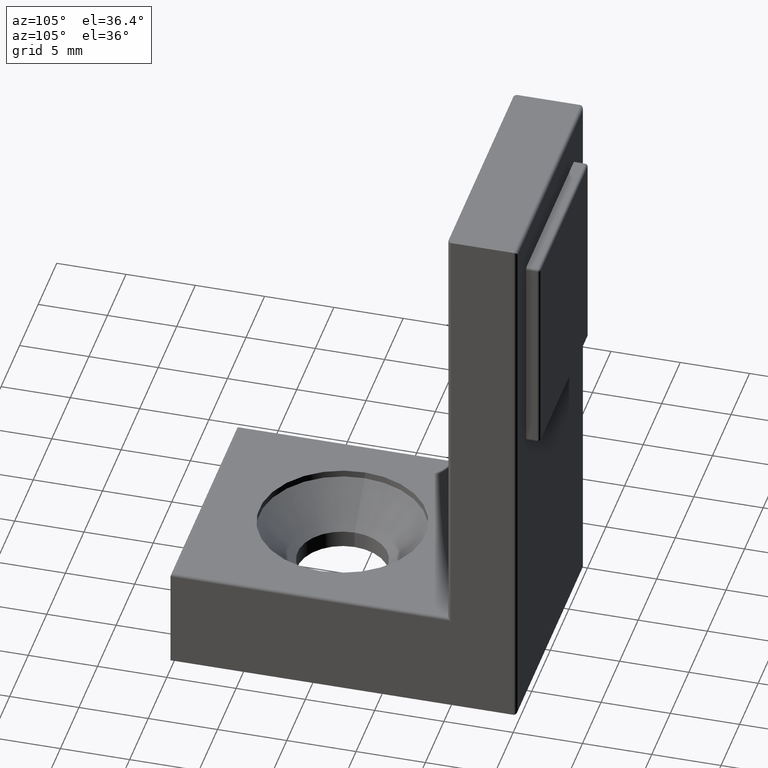
[diagram: clean part render]
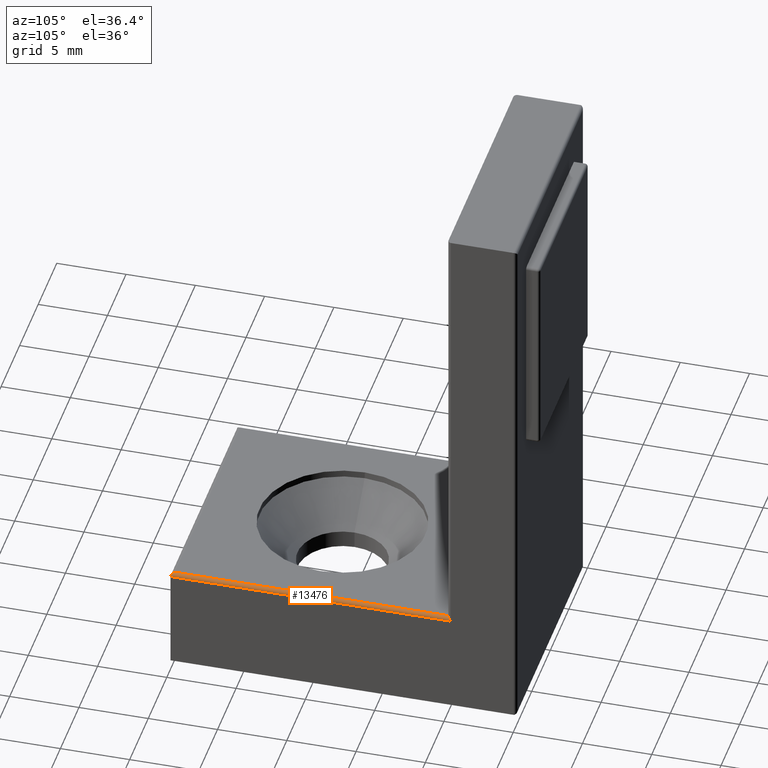
[diagram: same view with one face highlighted and labeled with its STEP entity id]
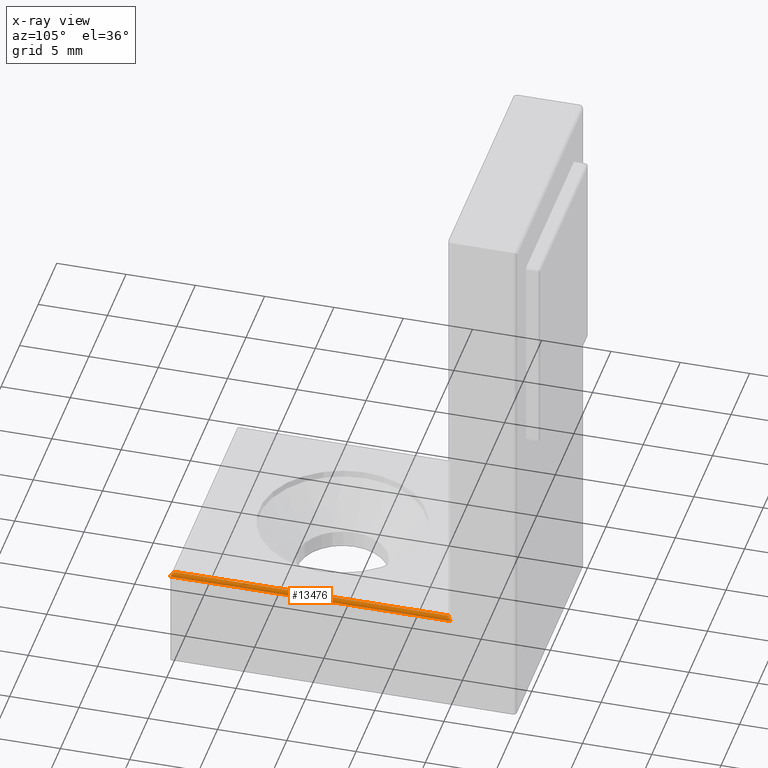
[diagram: x-ray of the same camera — body ghosted, the highlighted face saturated]
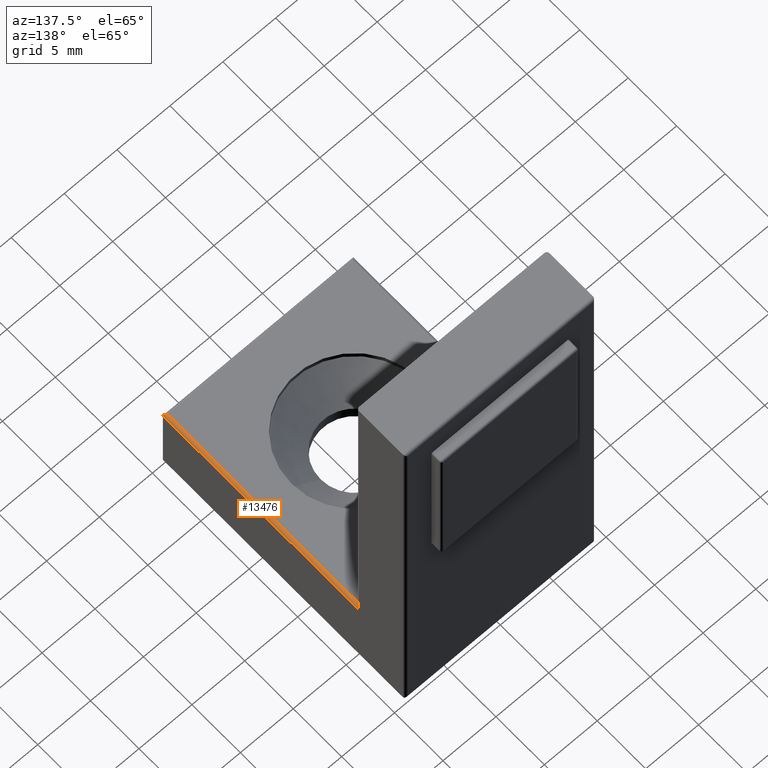
[diagram: same view with one face highlighted and labeled with its STEP entity id]
A machine part, auxiliary view. The second image highlights one B-rep face of the part: STEP entity #13476.
The next image is the same camera in x-ray: the body ghosted, the highlighted face saturated — about 0% of this face is hidden behind the body in this view.
A second angle (auxiliary view) of the same face is appended — the face is thin or edge-on in the first view.
In plain terms, the highlighted cylindrical surface (edge-blend (fillet) strip) has radius 0.25 mm, axis along (0, -1, -0).
Its self-contained STEP definition (entity closure, byte-faithful):
#351 = LINE ( 'NONE', #15017, #12426 ) ;
#391 = CARTESIAN_POINT ( 'NONE',  ( 8.749999999999998200, -24.75000000000000000, 7.499999999999996400 ) ) ;
#475 = LINE ( 'NONE', #1909, #8980 ) ;
#1492 = FACE_OUTER_BOUND ( 'NONE', #11114, .T. ) ;
#1909 = CARTESIAN_POINT ( 'NONE',  ( 8.749999999999998200, -4.999999999999999100, 7.500000000000000000 ) ) ;
#1987 = CARTESIAN_POINT ( 'NONE',  ( 9.000000000000000000, -4.749999999999999100, 7.249999999999999100 ) ) ;
#2018 = CARTESIAN_POINT ( 'NONE',  ( 8.749999999999998200, -4.999999999999999100, 7.500000000000000000 ) ) ;
#2036 = EDGE_CURVE ( 'NONE', #2319, #6751, #351, .T. ) ;
#2319 = VERTEX_POINT ( 'NONE', #1987 ) ;
#2848 = CARTESIAN_POINT ( 'NONE',  ( 9.000000000000000000, -4.749999999999999100, 7.249999999999999100 ) ) ;
#3062 = CARTESIAN_POINT ( 'NONE',  ( 9.000000000000000000, -4.896446609406723400, 7.396446609406725200 ) ) ;
#3308 = CARTESIAN_POINT ( 'NONE',  ( 8.896446609406725200, -24.89644660940673000, 7.499999999999996400 ) ) ;
#3567 = CARTESIAN_POINT ( 'NONE',  ( 9.000000000000000000, -25.00000000000000000, 7.249999999999996400 ) ) ;
#4607 = CARTESIAN_POINT ( 'NONE',  ( 9.000000000000000000, -25.00000000000000000, 7.249999999999996400 ) ) ;
#4752 =( BOUNDED_CURVE ( )  B_SPLINE_CURVE ( 3, ( #15776, #9426, #3062, #2848 ),
 .UNSPECIFIED., .F., .T. ) 
 B_SPLINE_CURVE_WITH_KNOTS ( ( 4, 4 ),
 ( 3.141592653589793100, 4.712388980384689700 ),
 .UNSPECIFIED. ) 
 CURVE ( )  GEOMETRIC_REPRESENTATION_ITEM ( )  RATIONAL_B_SPLINE_CURVE ( ( 1.000000000000000000, 0.8047378541243649400, 0.8047378541243649400, 1.000000000000000000 ) ) 
 REPRESENTATION_ITEM ( '' )  );
#5034 = DIRECTION ( 'NONE',  ( 0.0000000000000000000, -1.000000000000000000, -1.734723475976806800E-016 ) ) ;
#5086 = CARTESIAN_POINT ( 'NONE',  ( 8.749999999999998200, -1.257674520083185100E-015, 7.250000000000000000 ) ) ;
#5812 = DIRECTION ( 'NONE',  ( -0.0000000000000000000, 1.000000000000000000, 1.734723475976806800E-016 ) ) ;
#6751 = VERTEX_POINT ( 'NONE', #3567 ) ;
#7430 = EDGE_CURVE ( 'NONE', #7874, #2319, #4752, .T. ) ;
#7874 = VERTEX_POINT ( 'NONE', #2018 ) ;
#8764 = EDGE_CURVE ( 'NONE', #10410, #6751, #11568, .T. ) ;
#8980 = VECTOR ( 'NONE', #5812, 1000.000000000000000 ) ;
#9369 = AXIS2_PLACEMENT_3D ( 'NONE', #5086, #5034, #12730 ) ;
#9426 = CARTESIAN_POINT ( 'NONE',  ( 8.896446609406725200, -4.999999999999999100, 7.500000000000000000 ) ) ;
#10410 = VERTEX_POINT ( 'NONE', #391 ) ;
#11114 = EDGE_LOOP ( 'NONE', ( #12925, #12331, #16260, #11302 ) ) ;
#11302 = ORIENTED_EDGE ( 'NONE', *, *, #11899, .F. ) ;
#11568 =( BOUNDED_CURVE ( )  B_SPLINE_CURVE ( 3, ( #13710, #3308, #15042, #4607 ),
 .UNSPECIFIED., .F., .T. ) 
 B_SPLINE_CURVE_WITH_KNOTS ( ( 4, 4 ),
 ( 4.712388980384689700, 6.283185307179586200 ),
 .UNSPECIFIED. ) 
 CURVE ( )  GEOMETRIC_REPRESENTATION_ITEM ( )  RATIONAL_B_SPLINE_CURVE ( ( 1.000000000000000000, 0.8047378541243649400, 0.8047378541243649400, 1.000000000000000000 ) ) 
 REPRESENTATION_ITEM ( '' )  );
#11899 = EDGE_CURVE ( 'NONE', #10410, #7874, #475, .T. ) ;
#12331 = ORIENTED_EDGE ( 'NONE', *, *, #2036, .F. ) ;
#12426 = VECTOR ( 'NONE', #16403, 1000.000000000000000 ) ;
#12730 = DIRECTION ( 'NONE',  ( 0.0000000000000000000, 1.734723475976807100E-016, -1.000000000000000000 ) ) ;
#12925 = ORIENTED_EDGE ( 'NONE', *, *, #8764, .T. ) ;
#13342 = CYLINDRICAL_SURFACE ( 'NONE', #9369, 0.2500000000000002200 ) ;
#13476 = ADVANCED_FACE ( 'NONE', ( #1492 ), #13342, .T. ) ;
#13710 = CARTESIAN_POINT ( 'NONE',  ( 8.749999999999998200, -24.75000000000000000, 7.499999999999996400 ) ) ;
#15017 = CARTESIAN_POINT ( 'NONE',  ( 9.000000000000000000, -1.257674520083185100E-015, 7.250000000000000000 ) ) ;
#15042 = CARTESIAN_POINT ( 'NONE',  ( 9.000000000000000000, -25.00000000000000000, 7.396446609406721600 ) ) ;
#15776 = CARTESIAN_POINT ( 'NONE',  ( 8.749999999999998200, -4.999999999999999100, 7.500000000000000000 ) ) ;
#16260 = ORIENTED_EDGE ( 'NONE', *, *, #7430, .F. ) ;
#16403 = DIRECTION ( 'NONE',  ( 0.0000000000000000000, -1.000000000000000000, -1.734723475976806800E-016 ) ) ;